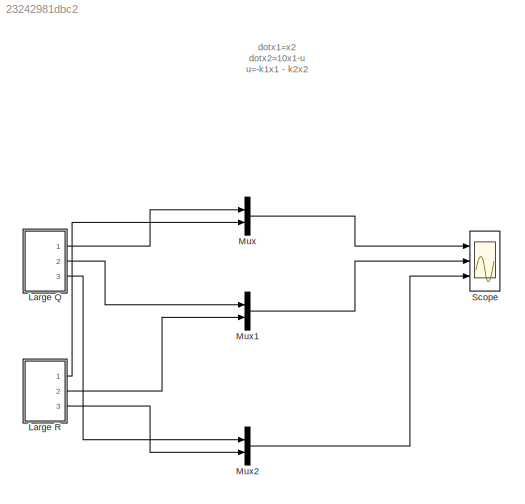
MODEL slx_23242981dbc2
KIND model
CONFIG AbsTol = auto
CONFIG EnableMultiTasking = off
CONFIG FixedStep = auto
CONFIG MaxStep = auto
CONFIG MinStep = auto
CONFIG RelTol = 1e-3
CONFIG SampleTimeConstraint = Unconstrained
CONFIG Solver = VariableStepAuto
CONFIG SolverName = VariableStepAuto
CONFIG StartTime = 0.0
CONFIG StopTime = 5
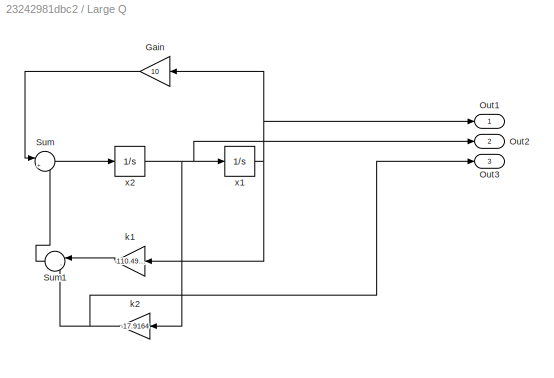
BLOCK [SubSystem] Large Q 
  Ports = [0, 3]
  RequestExecContextInheritance = off
BLOCK [Gain] Large Q /Gain
  Gain = 10
  OutDataTypeStr = Inherit: Inherit via internal rule
  ParamDataTypeStr = Inherit: Inherit via internal rule
  SaturateOnIntegerOverflow = off
BLOCK [Outport] Large Q /Out1
  IconDisplay = Port number
BLOCK [Outport] Large Q /Out2
  IconDisplay = Port number
  Port = 2
BLOCK [Outport] Large Q /Out3
  IconDisplay = Port number
  Port = 3
BLOCK [Sum] Large Q /Sum
  IconShape = round
  InputSameDT = off
  Inputs = |+-
  OutDataTypeStr = Inherit: Inherit via internal rule
  Ports = [2, 1]
  SaturateOnIntegerOverflow = off
BLOCK [Sum] Large Q /Sum1
  IconShape = round
  InputSameDT = off
  Inputs = |--
  OutDataTypeStr = Inherit: Inherit via internal rule
  Ports = [2, 1]
  SaturateOnIntegerOverflow = off
BLOCK [Gain] Large Q /k1
  Gain = -110.4988
  OutDataTypeStr = Inherit: Inherit via internal rule
  ParamDataTypeStr = Inherit: Inherit via internal rule
  SaturateOnIntegerOverflow = off
BLOCK [Gain] Large Q /k2
  Gain = -17.9164
  OutDataTypeStr = Inherit: Inherit via internal rule
  ParamDataTypeStr = Inherit: Inherit via internal rule
  SaturateOnIntegerOverflow = off
BLOCK [Integrator] Large Q /x1
  InitialCondition = 5
  Ports = [1, 1]
BLOCK [Integrator] Large Q /x2
  Ports = [1, 1]
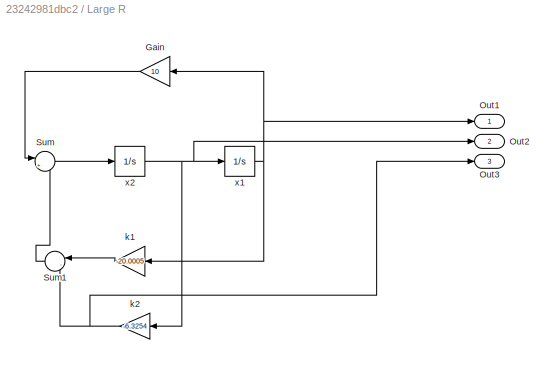
BLOCK [SubSystem] Large R
  Ports = [0, 3]
  RequestExecContextInheritance = off
BLOCK [Gain] Large R/Gain
  Gain = 10
  OutDataTypeStr = Inherit: Inherit via internal rule
  ParamDataTypeStr = Inherit: Inherit via internal rule
  SaturateOnIntegerOverflow = off
BLOCK [Outport] Large R/Out1
  IconDisplay = Port number
BLOCK [Outport] Large R/Out2
  IconDisplay = Port number
  Port = 2
BLOCK [Outport] Large R/Out3
  IconDisplay = Port number
  Port = 3
BLOCK [Sum] Large R/Sum
  IconShape = round
  InputSameDT = off
  Inputs = |+-
  OutDataTypeStr = Inherit: Inherit via internal rule
  Ports = [2, 1]
  SaturateOnIntegerOverflow = off
BLOCK [Sum] Large R/Sum1
  IconShape = round
  InputSameDT = off
  Inputs = |--
  OutDataTypeStr = Inherit: Inherit via internal rule
  Ports = [2, 1]
  SaturateOnIntegerOverflow = off
BLOCK [Gain] Large R/k1
  Gain = -20.0005
  OutDataTypeStr = Inherit: Inherit via internal rule
  ParamDataTypeStr = Inherit: Inherit via internal rule
  SaturateOnIntegerOverflow = off
BLOCK [Gain] Large R/k2
  Gain = -6.3254
  OutDataTypeStr = Inherit: Inherit via internal rule
  ParamDataTypeStr = Inherit: Inherit via internal rule
  SaturateOnIntegerOverflow = off
BLOCK [Integrator] Large R/x1
  InitialCondition = 5
  Ports = [1, 1]
BLOCK [Integrator] Large R/x2
  Ports = [1, 1]
BLOCK [Mux] Mux
  DisplayOption = bar
  Inputs = 2
  Ports = [2, 1]
BLOCK [Mux] Mux1
  DisplayOption = bar
  Inputs = 2
  Ports = [2, 1]
BLOCK [Mux] Mux2
  DisplayOption = bar
  Inputs = 2
  Ports = [2, 1]
BLOCK [Scope] Scope
  Floating = off
  NumInputPorts = 3
  Ports = [3]
  ScopeSpecificationString = Simulink.scopes.TimeScopeBlockCfg('CurrentConfiguration', extmgr.ConfigurationSet(extmgr.Configuration('Core','General UI',true),extmgr.Configuration('Core','Source UI',true),extmgr.Configuration('Sources','WiredSimulink',true),extmgr.Configuration('Visuals','Time Domain',true,'SerializedDisplays',{struct('MinYLimReal','-0.63573','MaxYLimReal','5.62619','YLabelReal','','MinYLimMag','0.00000','MaxY...<+2688ch>
ANNOTATION (root): dotx1=x2 dotx2=10x1-u u=-k1x1 - k2x2
LINE Large Q /Gain:1 -> Large Q /Sum:1
LINE Large Q /Sum1:1 -> Large Q /Sum:2
LINE Large Q /Sum:1 -> Large Q /x2:1
LINE Large Q /k1:1 -> Large Q /Sum1:1
NET Large Q /k2:1 -> Large Q /Out3:1, Large Q /Sum1:2
NET Large Q /x1:1 -> Large Q /Gain:1, Large Q /Out1:1, Large Q /k1:1
NET Large Q /x2:1 -> Large Q /Out2:1, Large Q /k2:1, Large Q /x1:1
LINE Large Q :1 -> Mux:1
LINE Large Q :2 -> Mux1:1
LINE Large Q :3 -> Mux2:1
LINE Large R/Gain:1 -> Large R/Sum:1
LINE Large R/Sum1:1 -> Large R/Sum:2
LINE Large R/Sum:1 -> Large R/x2:1
LINE Large R/k1:1 -> Large R/Sum1:1
NET Large R/k2:1 -> Large R/Out3:1, Large R/Sum1:2
NET Large R/x1:1 -> Large R/Gain:1, Large R/Out1:1, Large R/k1:1
NET Large R/x2:1 -> Large R/Out2:1, Large R/k2:1, Large R/x1:1
LINE Large R:1 -> Mux:2
LINE Large R:2 -> Mux1:2
LINE Large R:3 -> Mux2:2
LINE Mux1:1 -> Scope:2
LINE Mux2:1 -> Scope:3
LINE Mux:1 -> Scope:1
note: NET lines group one-source signal fan-out (src -> all destinations, sorted); 1:1 wires keep LINE
